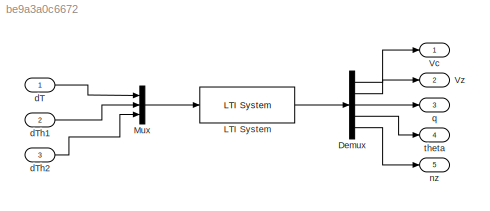
MODEL slx_be9a3a0c6672
KIND model
CONFIG AbsTol = auto
CONFIG EnableMultiTasking = off
CONFIG FixedStep = auto
CONFIG MaxStep = auto
CONFIG MinStep = auto
CONFIG RelTol = 1e-3
CONFIG SampleTimeConstraint = Unconstrained
CONFIG SolverName = VariableStepAuto
CONFIG StartTime = 0.0
CONFIG StopTime = 10.0
BLOCK [Demux] Demux
  Outputs = 5
BLOCK [Reference] LTI System  REF=cstblocks/LTI System
  SourceBlock = cstblocks/LTI System
  SourceType = LTI Block
BLOCK [Mux] Mux
  DisplayOption = bar
  Inputs = 3
BLOCK [Outport] Vc
BLOCK [Outport] Vz
  Port = 2
BLOCK [Inport] dT
BLOCK [Inport] dTh1
  Port = 2
BLOCK [Inport] dTh2
  Port = 3
BLOCK [Outport] nz
  Port = 5
BLOCK [Outport] q
  Port = 3
BLOCK [Outport] theta
  Port = 4
LINE Demux:1 -> Vc:1
LINE Demux:2 -> Vz:1
LINE Demux:3 -> q:1
LINE Demux:4 -> theta:1
LINE Demux:5 -> nz:1
LINE LTI System:1 -> Demux:1
LINE Mux:1 -> LTI System:1
LINE dT:1 -> Mux:1
LINE dTh1:1 -> Mux:2
LINE dTh2:1 -> Mux:3
